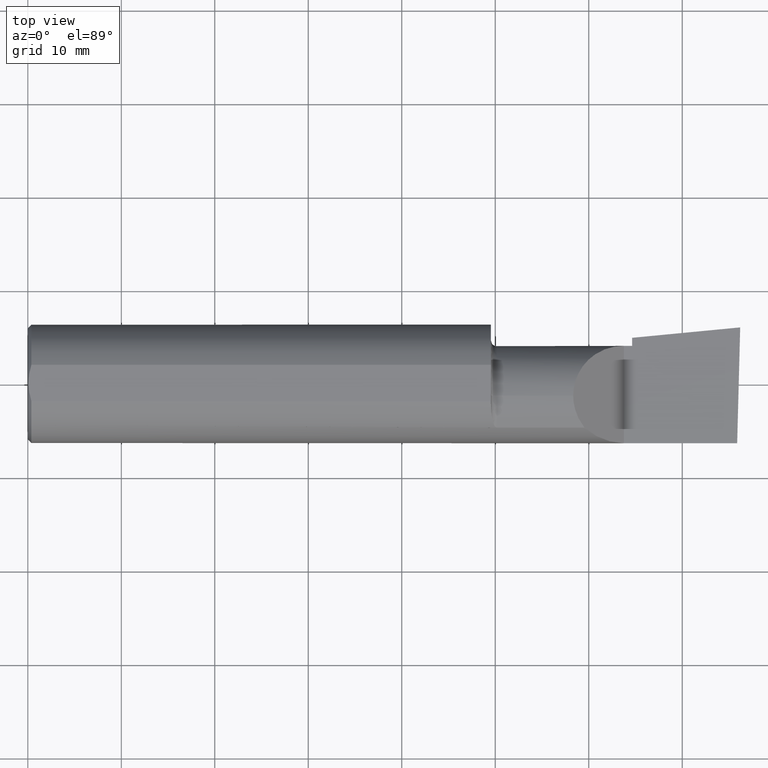
[diagram: clean part render]
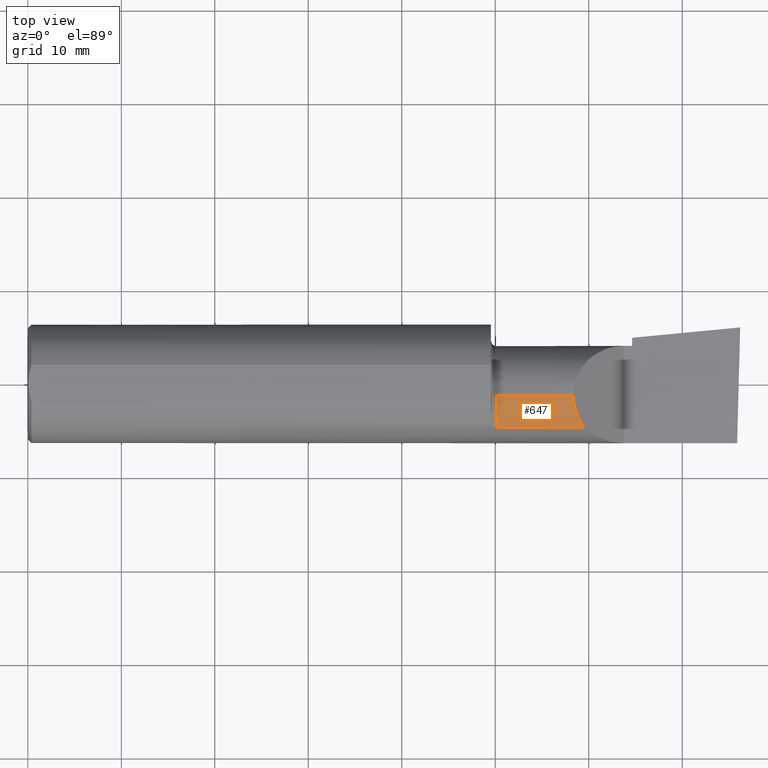
[diagram: same view with one face highlighted and labeled with its STEP entity id]
A machine part, top view. The second image highlights one B-rep face of the part: STEP entity #647.
In plain terms, the highlighted cylindrical surface (partial cylindrical patch) has radius 5.414 mm, axis along (-1, -0, -0).
Its self-contained STEP definition (entity closure, byte-faithful):
#12 = VERTEX_POINT ( 'NONE', #417 ) ;
#51 = CARTESIAN_POINT ( 'NONE',  ( 0.000000000000000000, -0.05299999999999998462, 0.000000000000000000 ) ) ;
#65 = CARTESIAN_POINT ( 'NONE',  ( 1.975000000000000089, -0.05299999999999998462, 0.2131499999999999506 ) ) ;
#83 = ORIENTED_EDGE ( 'NONE', *, *, #445, .T. ) ;
#104 = CARTESIAN_POINT ( 'NONE',  ( 0.000000000000000000, -0.05299999999999998462, 0.2131499999999999506 ) ) ;
#118 = AXIS2_PLACEMENT_3D ( 'NONE', #667, #737, #606 ) ;
#134 = EDGE_LOOP ( 'NONE', ( #579, #83, #339, #753 ) ) ;
#144 = VECTOR ( 'NONE', #642, 39.37007874015748143 ) ;
#171 = CARTESIAN_POINT ( 'NONE',  ( 2.296849999999997838, -0.05299999999999998462, 0.2131499999999999506 ) ) ;
#191 = EDGE_CURVE ( 'NONE', #634, #379, #653, .T. ) ;
#207 = CARTESIAN_POINT ( 'NONE',  ( 2.344079160038586185, -0.1868028301886760500, 0.1659208399614119644 ) ) ;
#238 =( BOUNDED_CURVE ( )  B_SPLINE_CURVE ( 3, ( #258, #666, #601, #171 ),
 .UNSPECIFIED., .F., .F. ) 
 B_SPLINE_CURVE_WITH_KNOTS ( ( 4, 4 ),
 ( 5.604538515477369032, 6.283185307179586232 ),
 .UNSPECIFIED. ) 
 CURVE ( )  GEOMETRIC_REPRESENTATION_ITEM ( )  RATIONAL_B_SPLINE_CURVE ( ( 1.000000000000000000, 0.9619867256453048521, 0.9619867256453048521, 1.000000000000000000 ) ) 
 REPRESENTATION_ITEM ( '' )  );
#250 = CARTESIAN_POINT ( 'NONE',  ( 1.975000000000000089, -0.1868028301886792697, 0.1659208399614088003 ) ) ;
#254 = AXIS2_PLACEMENT_3D ( 'NONE', #51, #537, #719 ) ;
#258 = CARTESIAN_POINT ( 'NONE',  ( 2.344079160038586185, -0.1868028301886760500, 0.1659208399614119644 ) ) ;
#286 = DIRECTION ( 'NONE',  ( -1.000000000000000000, -0.000000000000000000, -0.000000000000000000 ) ) ;
#304 = FACE_OUTER_BOUND ( 'NONE', #134, .T. ) ;
#326 = VECTOR ( 'NONE', #286, 39.37007874015748143 ) ;
#339 = ORIENTED_EDGE ( 'NONE', *, *, #191, .F. ) ;
#379 = VERTEX_POINT ( 'NONE', #65 ) ;
#389 = VERTEX_POINT ( 'NONE', #207 ) ;
#411 = LINE ( 'NONE', #633, #144 ) ;
#417 = CARTESIAN_POINT ( 'NONE',  ( 2.296849999999997838, -0.05299999999999998462, 0.2131499999999999506 ) ) ;
#445 = EDGE_CURVE ( 'NONE', #12, #379, #530, .T. ) ;
#478 = EDGE_CURVE ( 'NONE', #634, #389, #411, .T. ) ;
#530 = LINE ( 'NONE', #104, #326 ) ;
#537 = DIRECTION ( 'NONE',  ( -1.000000000000000000, -0.000000000000000000, -0.000000000000000000 ) ) ;
#579 = ORIENTED_EDGE ( 'NONE', *, *, #636, .T. ) ;
#601 = CARTESIAN_POINT ( 'NONE',  ( 2.296849999999997838, -0.1021668565906553305, 0.2131500000000000061 ) ) ;
#606 = DIRECTION ( 'NONE',  ( 0.000000000000000000, 0.000000000000000000, 1.000000000000000000 ) ) ;
#633 = CARTESIAN_POINT ( 'NONE',  ( 2.260000000000000231, -0.1868028301886794917, 0.1659208399614086338 ) ) ;
#634 = VERTEX_POINT ( 'NONE', #250 ) ;
#636 = EDGE_CURVE ( 'NONE', #389, #12, #238, .T. ) ;
#642 = DIRECTION ( 'NONE',  ( 1.000000000000000000, 0.000000000000000000, 0.000000000000000000 ) ) ;
#647 = ADVANCED_FACE ( 'NONE', ( #304 ), #656, .T. ) ;
#653 = CIRCLE ( 'NONE', #118, 0.2131499999999999506 ) ;
#656 = CYLINDRICAL_SURFACE ( 'NONE', #254, 0.2131499999999999506 ) ;
#666 = CARTESIAN_POINT ( 'NONE',  ( 2.313215146136121447, -0.1485302233682029571, 0.1967848538638767297 ) ) ;
#667 = CARTESIAN_POINT ( 'NONE',  ( 1.975000000000000089, -0.05299999999999998462, 0.000000000000000000 ) ) ;
#719 = DIRECTION ( 'NONE',  ( 0.000000000000000000, 0.000000000000000000, 1.000000000000000000 ) ) ;
#737 = DIRECTION ( 'NONE',  ( -1.000000000000000000, -0.000000000000000000, -0.000000000000000000 ) ) ;
#753 = ORIENTED_EDGE ( 'NONE', *, *, #478, .T. ) ;